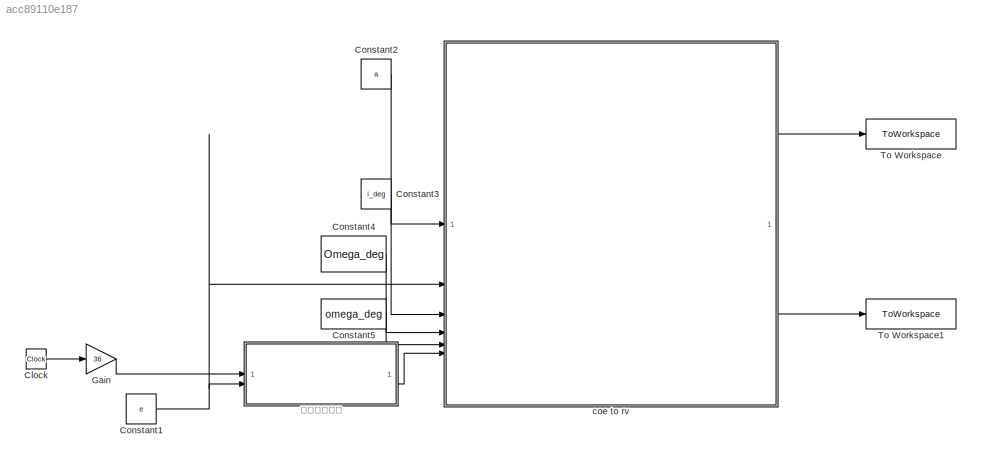
MODEL slx_acc89110e187
KIND model
CONFIG AbsTol = auto
CONFIG EnableMultiTasking = off
CONFIG FixedStep = 1e-3
CONFIG MaxStep = auto
CONFIG MinStep = auto
CONFIG RelTol = 1e-3
CONFIG SampleTimeConstraint = Unconstrained
CONFIG SolverName = FixedStepAuto
CONFIG StartTime = 0.0
CONFIG StopTime = 10.0
BLOCK [Clock] Clock
BLOCK [Constant] Constant1
  Value = e
BLOCK [Constant] Constant2
  Value = a
BLOCK [Constant] Constant3
  Value = i_deg
BLOCK [Constant] Constant4
  Value = Omega_deg
BLOCK [Constant] Constant5
  Value = omega_deg
BLOCK [Gain] Gain
  Gain = 36
BLOCK [ToWorkspace] To Workspace
  FixptAsFi = on
  MaxDataPoints = inf
  SampleTime = -1
  SaveFormat = Timeseries
  VariableName = r
BLOCK [ToWorkspace] To Workspace1
  FixptAsFi = on
  MaxDataPoints = inf
  SampleTime = -1
  SaveFormat = Timeseries
  VariableName = v
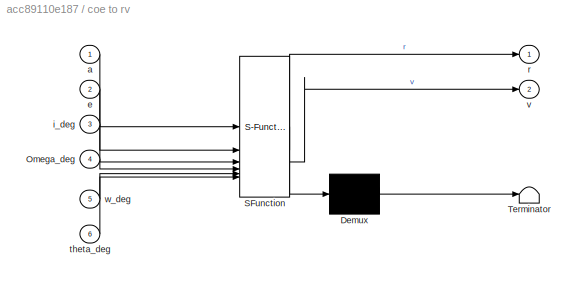
BLOCK [SubSystem] coe to rv
  ErrorFcn = Stateflow.Translate.translate
  PermitHierarchicalResolution = ExplicitOnly
  SFBlockType = MATLAB Function
  TreatAsAtomicUnit = on
BLOCK [Demux] coe to rv/ Demux 
  Outputs = 1
BLOCK [S-Function] coe to rv/ SFunction 
  EnableBusSupport = on
  FunctionName = sf_sfun
  PortCounts = [6 3]
  SFcnIsStateOwnerBlock = off
  SFunctionDeploymentMode = off
  Tag = Stateflow S-Function 5
BLOCK [Terminator] coe to rv/ Terminator 
BLOCK [Inport] coe to rv/Omega_deg
  Port = 4
BLOCK [Inport] coe to rv/a
BLOCK [Inport] coe to rv/e
  Port = 2
BLOCK [Inport] coe to rv/i_deg
  Port = 3
BLOCK [Outport] coe to rv/r
BLOCK [Inport] coe to rv/theta_deg
  Port = 6
BLOCK [Outport] coe to rv/v
  Port = 2
BLOCK [Inport] coe to rv/w_deg
  Port = 5
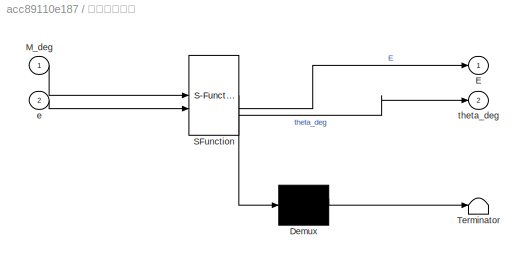
BLOCK [SubSystem] 求解真近点角
  ErrorFcn = Stateflow.Translate.translate
  PermitHierarchicalResolution = ExplicitOnly
  SFBlockType = MATLAB Function
  TreatAsAtomicUnit = on
BLOCK [Demux] 求解真近点角/ Demux 
  Outputs = 1
BLOCK [S-Function] 求解真近点角/ SFunction 
  EnableBusSupport = on
  FunctionName = sf_sfun
  PortCounts = [2 3]
  SFcnIsStateOwnerBlock = off
  SFunctionDeploymentMode = off
  Tag = Stateflow S-Function 1
BLOCK [Terminator] 求解真近点角/ Terminator 
BLOCK [Outport] 求解真近点角/E
BLOCK [Inport] 求解真近点角/M_deg
BLOCK [Inport] 求解真近点角/e
  Port = 2
BLOCK [Outport] 求解真近点角/theta_deg
  Port = 2
LINE Clock:1 -> Gain:1
NET Constant1:1 -> coe to rv:2, 求解真近点角:2
LINE Constant2:1 -> coe to rv:1
LINE Constant3:1 -> coe to rv:3
LINE Constant4:1 -> coe to rv:4
LINE Constant5:1 -> coe to rv:5
LINE Gain:1 -> 求解真近点角:1
LINE coe to rv:1 -> To Workspace:1
LINE coe to rv:2 -> To Workspace1:1
LINE 求解真近点角:2 -> coe to rv:6
note: NET lines group one-source signal fan-out (src -> all destinations, sorted); 1:1 wires keep LINE
CHART 求解真近点角 states=1 transitions=1
  STATE_LABEL 'eML_blk_kernel()'
  STATE_LABEL 'SCRIPT:\nfunction [E, theta_deg] = kepler_solve(M_deg, e) \n    E = 0; \n    theta_deg = 0;\n    M = mod(deg2rad(M_deg), 2*pi); \n    E = M;\n    ratio = 1; \n    tol = 1e-8;\n    while abs(ratio) > tol\n        f = E - e*sin(E) - M;\n        df = 1 - e*cos(E);\n        ratio = f/df;\n        E = E - ratio; \n    end\n    theta = 2 * atan2(sqrt(1+e)*sin(E/2), sqrt(1-e)*cos(E/2));\n    theta_deg = mod(rad2deg(the...<+14ch>'
CHART coe to rv states=1 transitions=1
  STATE_LABEL 'eML_blk_kernel()'
  STATE_LABEL 'SCRIPT:\nfunction [r, v] = sv_from_coe(a,e,i_deg,Omega_deg,w_deg,theta_deg)\n% 输入 coe: [a (km), e, i (deg), Omega (deg), omega (deg), theta (deg)]\n% 输出 r: 位置矢量 (km), v: 速度矢量 (km/s)\n\nmu = 398600.4418; % 地球引力常数 km^3/s^2\n\ni = deg2rad(i_deg);\nOmega = deg2rad(Omega_deg); \nw = deg2rad(w_deg); \ntheta = deg2rad(theta_deg);\n\np = a * (1 - e^2);\nr_pqw = (p / (1 + e * cos(theta))) * [cos(theta); sin(theta); 0];...<+314ch>'
CHART  states=0 transitions=0
CHART  states=0 transitions=0
